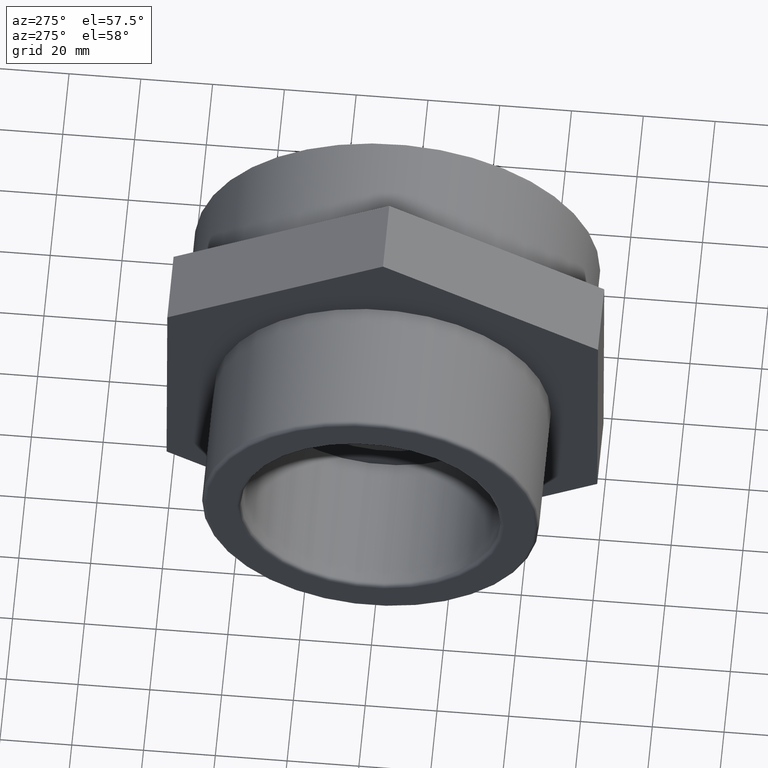
[diagram: clean part render]
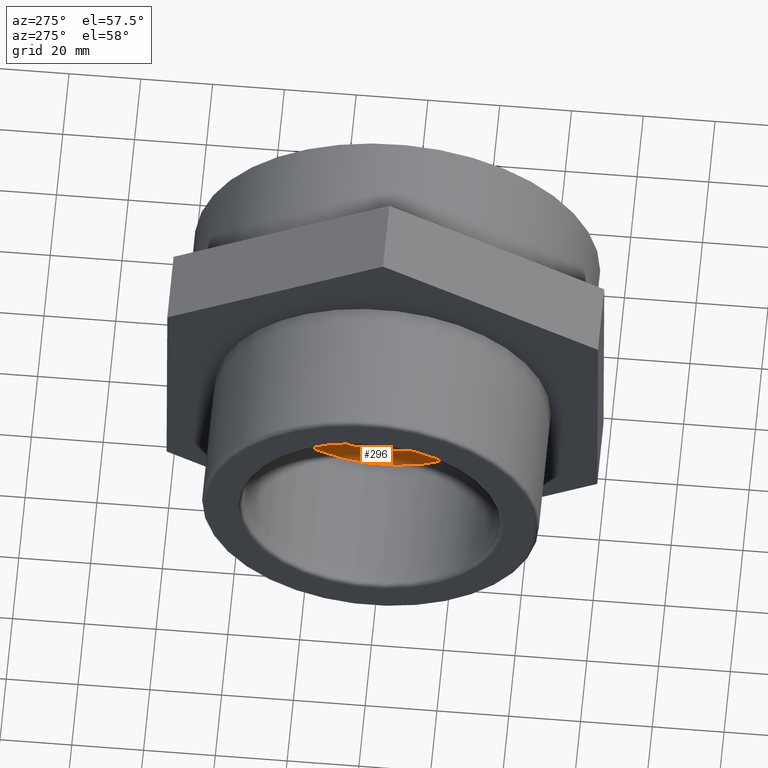
[diagram: same view with one face highlighted and labeled with its STEP entity id]
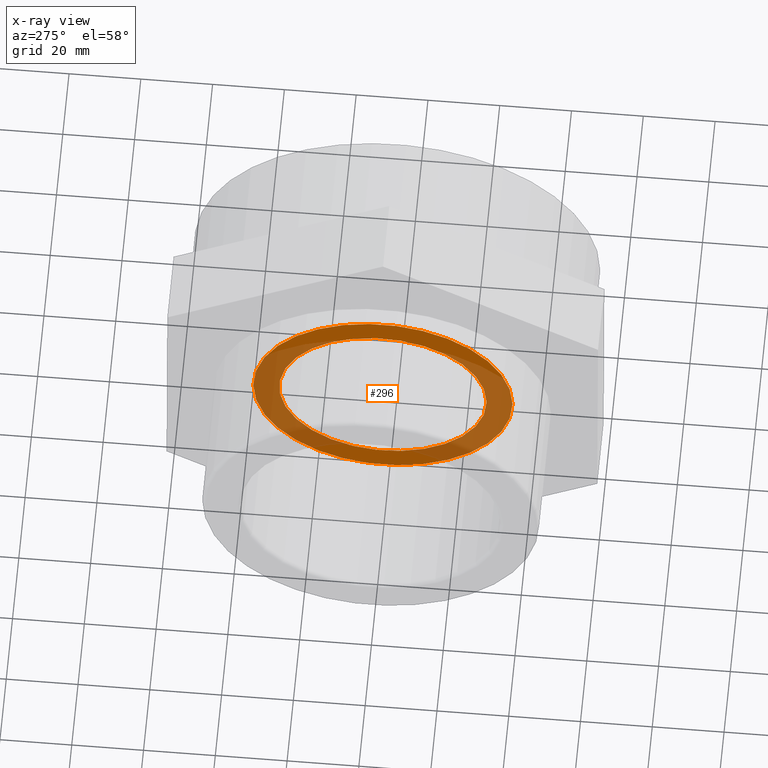
[diagram: x-ray of the same camera — body ghosted, the highlighted face saturated]
A machine part, auxiliary view. The second image highlights one B-rep face of the part: STEP entity #296.
The next image is the same camera in x-ray: the body ghosted, the highlighted face saturated — about 58% of this face is hidden behind the body in this view.
In plain terms, the highlighted planar face has unit normal (-1, -0, 0).
Its self-contained STEP definition (entity closure, byte-faithful):
#64=PLANE('',#331);
#78=FACE_BOUND('',#131,.T.);
#99=FACE_OUTER_BOUND('',#130,.T.);
#130=EDGE_LOOP('',(#256));
#131=EDGE_LOOP('',(#257));
#149=CIRCLE('',#320,36.113);
#152=CIRCLE('',#332,28.8904);
#163=VERTEX_POINT('',#455);
#178=VERTEX_POINT('',#500);
#189=EDGE_CURVE('',#163,#163,#149,.T.);
#210=EDGE_CURVE('',#178,#178,#152,.T.);
#256=ORIENTED_EDGE('',*,*,#189,.T.);
#257=ORIENTED_EDGE('',*,*,#210,.F.);
#296=ADVANCED_FACE('',(#99,#78),#64,.T.);
#320=AXIS2_PLACEMENT_3D('',#456,#374,#375);
#331=AXIS2_PLACEMENT_3D('',#499,#414,#415);
#332=AXIS2_PLACEMENT_3D('',#501,#416,#417);
#374=DIRECTION('center_axis',(-1.,-1.83697019872103E-16,0.));
#375=DIRECTION('ref_axis',(0.,0.,1.));
#414=DIRECTION('center_axis',(-1.,-1.83697019872103E-16,0.));
#415=DIRECTION('ref_axis',(0.,0.,1.));
#416=DIRECTION('center_axis',(-1.,-1.83697019872103E-16,0.));
#417=DIRECTION('ref_axis',(0.,0.,1.));
#455=CARTESIAN_POINT('',(-3.50000000000001,-36.113,0.));
#456=CARTESIAN_POINT('Origin',(-3.50000000000001,7.34788079488412E-15,0.));
#499=CARTESIAN_POINT('Origin',(-3.50000000000001,-28.8904,0.));
#500=CARTESIAN_POINT('',(-3.50000000000001,-28.8904,0.));
#501=CARTESIAN_POINT('Origin',(-3.50000000000001,7.34788079488412E-15,0.));